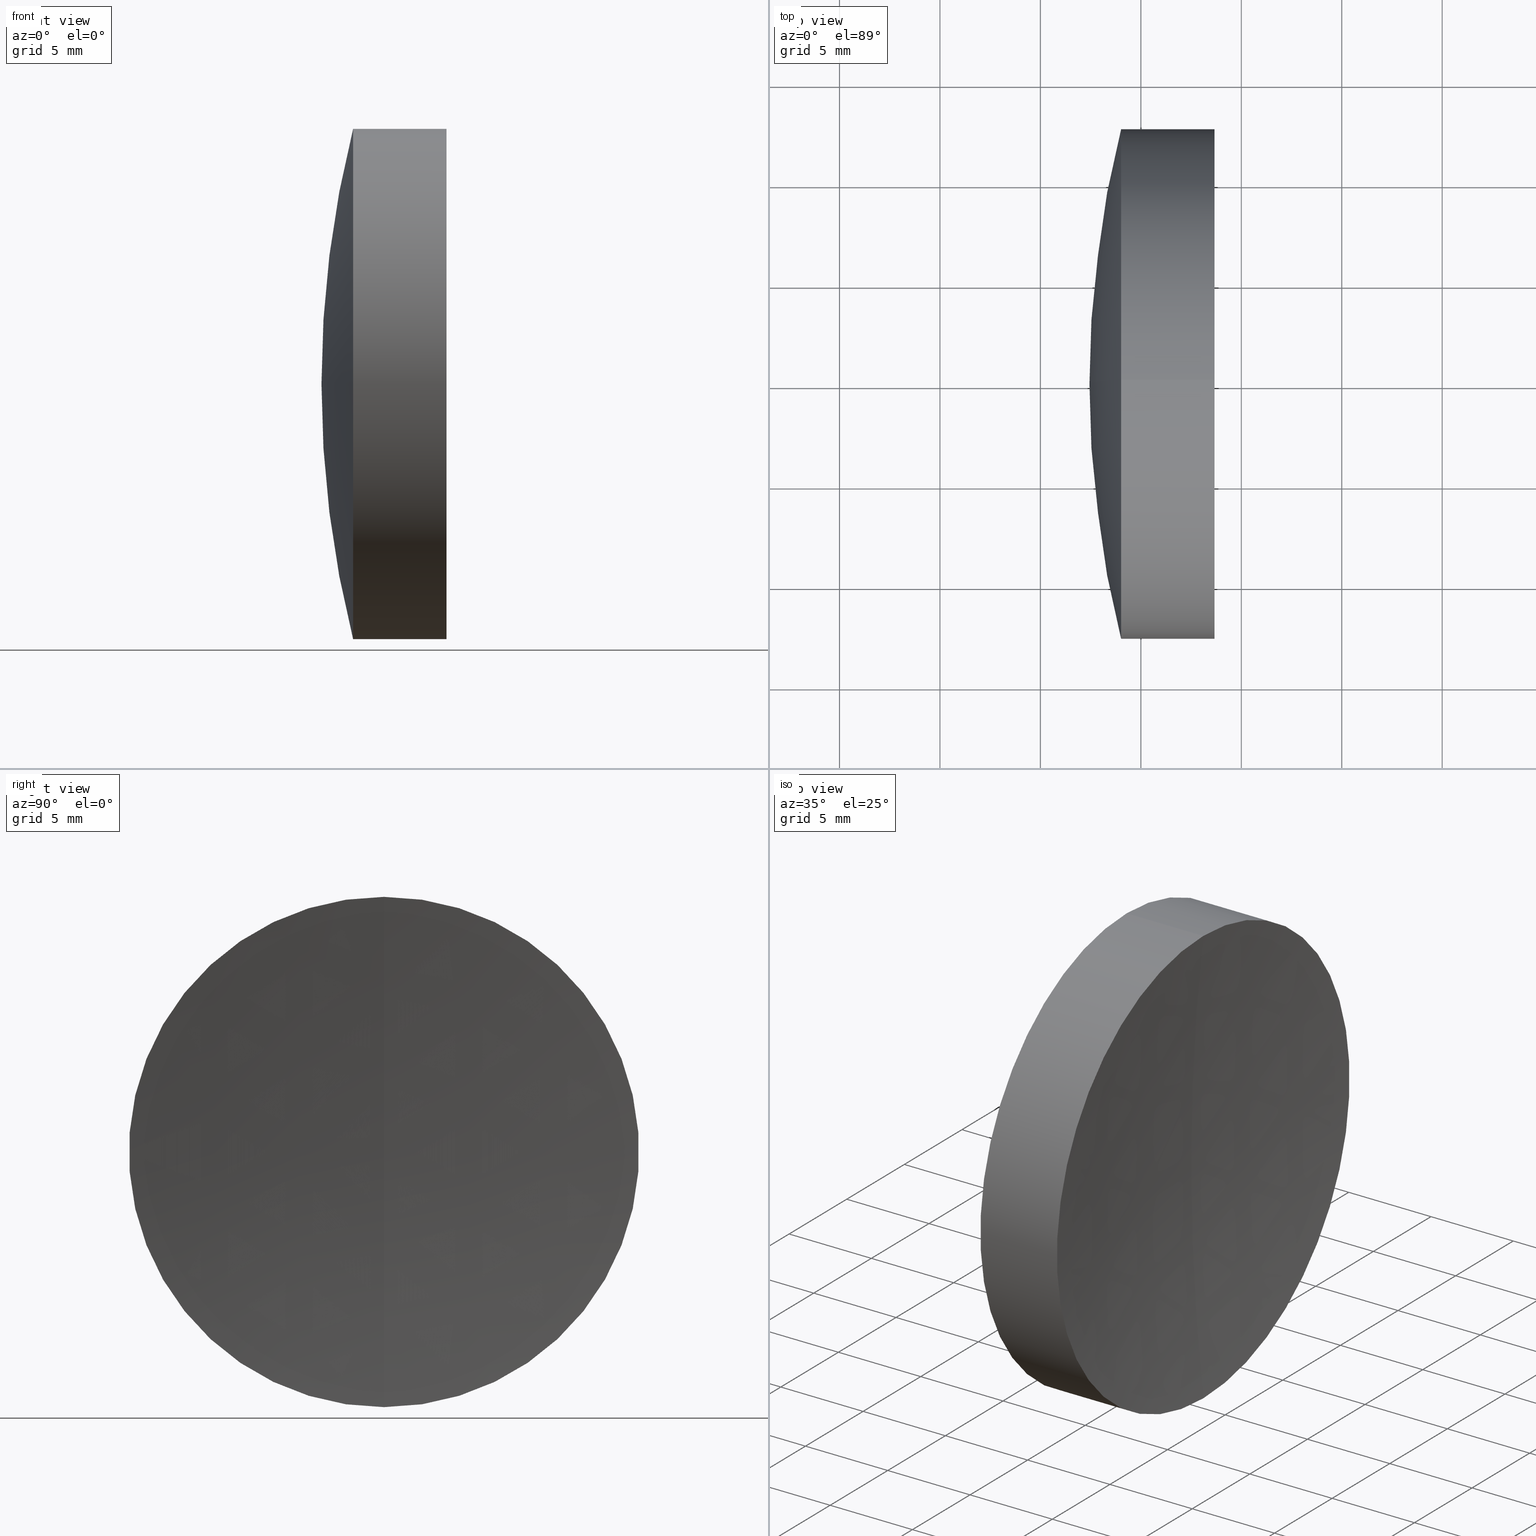
[diagram: canonical four-view strip — front | top / right | iso, engineering-drawing reading convention]
A machine part, canonical four-view strip (front | top / right | iso — engineering-drawing reading convention). The complete STEP part file that produces these views, byte-faithful:
ISO-10303-21;
HEADER;
FILE_DESCRIPTION (( 'STEP AP214' ),
    '1' );
FILE_NAME ('145126.STEP',
    '2019-06-03T07:16:52',
    ( 'user' ),
    ( '΢���й�' ),
    'SwSTEP 2.0',
    'SolidWorks 2016',
    '' );
FILE_SCHEMA (( 'AUTOMOTIVE_DESIGN' ));
ENDSEC;

DATA;
#1 = VERTEX_POINT ( 'NONE', #91 ) ;
#2 = PRODUCT_DEFINITION_FORMATION_WITH_SPECIFIED_SOURCE ( '�κ�', '', #87, .NOT_KNOWN. ) ;
#3 = DIRECTION ( 'NONE',  ( 0.0000000000000000000, 0.0000000000000000000, 1.000000000000000000 ) ) ;
#4 = ORIENTED_EDGE ( 'NONE', *, *, #176, .F. ) ;
#5 = EDGE_CURVE ( 'NONE', #327, #46, #310, .T. ) ;
#6 = CARTESIAN_POINT ( 'NONE',  ( 335.1955762872631200, 0.0000000000000000000, 12.70000000000003100 ) ) ;
#7 =( NAMED_UNIT ( * ) SI_UNIT ( $, .STERADIAN. ) SOLID_ANGLE_UNIT ( ) );
#8 = ORIENTED_EDGE ( 'NONE', *, *, #302, .F. ) ;
#9 = DIRECTION ( 'NONE',  ( 0.0000000000000000000, 1.000000000000000000, 0.0000000000000000000 ) ) ;
#10 = UNCERTAINTY_MEASURE_WITH_UNIT (LENGTH_MEASURE( 1.000000000000000100E-005 ), #336, 'distance_accuracy_value', 'NONE');
#11 = CIRCLE ( 'NONE', #113, 12.70000000000000600 ) ;
#12 = CARTESIAN_POINT ( 'NONE',  ( 334.0169874091439500, 0.0000000000000000000, 0.0000000000000000000 ) ) ;
#13 = DIRECTION ( 'NONE',  ( 0.0000000000000000000, 0.0000000000000000000, 1.000000000000000000 ) ) ;
#14 = CIRCLE ( 'NONE', #75, 65.31000000000005900 ) ;
#15 = AXIS2_PLACEMENT_3D ( 'NONE', #262, #101, #289 ) ;
#16 = CARTESIAN_POINT ( 'NONE',  ( -0.5519199926577972300, 0.0000000000000000000, 12.70000000000001400 ) ) ;
#17 = FILL_AREA_STYLE_COLOUR ( '', #69 ) ;
#18 = ORIENTED_EDGE ( 'NONE', *, *, #141, .F. ) ;
#19 = PRODUCT_RELATED_PRODUCT_CATEGORY ( 'part', '', ( #87 ) ) ;
#20 = SURFACE_STYLE_FILL_AREA ( #82 ) ;
#21 = PRESENTATION_STYLE_ASSIGNMENT (( #269 ) ) ;
#22 =( LENGTH_UNIT ( ) NAMED_UNIT ( * ) SI_UNIT ( .MILLI., .METRE. ) );
#23 = APPLICATION_CONTEXT ( 'automotive_design' ) ;
#24 = AXIS2_PLACEMENT_3D ( 'NONE', #90, #275, #335 ) ;
#25 = EDGE_CURVE ( 'NONE', #301, #86, #274, .T. ) ;
#26 = CIRCLE ( 'NONE', #299, 12.69999999999999200 ) ;
#27 = FACE_OUTER_BOUND ( 'NONE', #133, .T. ) ;
#28 = ORIENTED_EDGE ( 'NONE', *, *, #168, .T. ) ;
#29 = DIRECTION ( 'NONE',  ( 0.0000000000000000000, -1.000000000000000000, -1.224646799147353200E-016 ) ) ;
#30 =( LENGTH_UNIT ( ) NAMED_UNIT ( * ) SI_UNIT ( .MILLI., .METRE. ) );
#31 = CIRCLE ( 'NONE', #218, 12.70000000000003300 ) ;
#32 = CARTESIAN_POINT ( 'NONE',  ( 271.1322786824721900, 0.0000000000000000000, 9.096336103793295000E-015 ) ) ;
#33 = AXIS2_PLACEMENT_3D ( 'NONE', #204, #45, #231 ) ;
#34 = ORIENTED_EDGE ( 'NONE', *, *, #319, .F. ) ;
#35 = DIRECTION ( 'NONE',  ( 0.0000000000000000000, 0.0000000000000000000, 1.000000000000000000 ) ) ;
#36 = DIRECTION ( 'NONE',  ( -1.000000000000000000, -0.0000000000000000000, -0.0000000000000000000 ) ) ;
#37 = CYLINDRICAL_SURFACE ( 'NONE', #100, 12.70000000000001400 ) ;
#38 = CARTESIAN_POINT ( 'NONE',  ( 335.1955762872631200, 0.0000000000000000000, 0.0000000000000000000 ) ) ;
#39 = ORIENTED_EDGE ( 'NONE', *, *, #302, .T. ) ;
#40 = CARTESIAN_POINT ( 'NONE',  ( -0.5519199926577972300, 1.555301434917140200E-015, -12.70000000000001400 ) ) ;
#41 = CARTESIAN_POINT ( 'NONE',  ( 338.6678479171338800, 0.0000000000000000000, 0.0000000000000000000 ) ) ;
#42 = DIRECTION ( 'NONE',  ( 0.0000000000000000000, 0.0000000000000000000, 1.000000000000000000 ) ) ;
#43 = FACE_OUTER_BOUND ( 'NONE', #223, .T. ) ;
#44 = SURFACE_SIDE_STYLE ('',( #20 ) ) ;
#45 = DIRECTION ( 'NONE',  ( 0.0000000000000000000, -1.000000000000000000, -1.224646799147353200E-016 ) ) ;
#46 = VERTEX_POINT ( 'NONE', #192 ) ;
#47 = SPHERICAL_SURFACE ( 'NONE', #189, 51.99999999999998600 ) ;
#48 = ORIENTED_EDGE ( 'NONE', *, *, #206, .T. ) ;
#49 = APPLICATION_CONTEXT ( 'automotive_design' ) ;
#50 = ADVANCED_FACE ( 'NONE', ( #236 ), #47, .T. ) ;
#51 = FACE_OUTER_BOUND ( 'NONE', #216, .T. ) ;
#52 = COLOUR_RGB ( '',1.000000000000000000, 1.000000000000000000, 1.000000000000000000 ) ;
#53 =( LENGTH_UNIT ( ) NAMED_UNIT ( * ) SI_UNIT ( .MILLI., .METRE. ) );
#54 = EDGE_LOOP ( 'NONE', ( #4, #273, #122 ) ) ;
#55 = AXIS2_PLACEMENT_3D ( 'NONE', #174, #73, #132 ) ;
#56 = ORIENTED_EDGE ( 'NONE', *, *, #67, .T. ) ;
#57 =( NAMED_UNIT ( * ) SI_UNIT ( $, .STERADIAN. ) SOLID_ANGLE_UNIT ( ) );
#58 = ORIENTED_EDGE ( 'NONE', *, *, #233, .T. ) ;
#59 = CARTESIAN_POINT ( 'NONE',  ( 334.0169874091439500, -1.555301434917139600E-015, 12.70000000000001900 ) ) ;
#60 = CARTESIAN_POINT ( 'NONE',  ( 338.6678479171338800, 0.0000000000000000000, 0.0000000000000000000 ) ) ;
#61 = PRESENTATION_LAYER_ASSIGNMENT (  '', '', ( #85 ) ) ;
#62 = CARTESIAN_POINT ( 'NONE',  ( 384.4422786824721900, 0.0000000000000000000, 8.273825033181206100E-015 ) ) ;
#63 = ORIENTED_EDGE ( 'NONE', *, *, #222, .F. ) ;
#64 = DIRECTION ( 'NONE',  ( 0.0000000000000000000, 0.0000000000000000000, -1.000000000000000000 ) ) ;
#65 = SURFACE_STYLE_USAGE ( .BOTH. , #44 ) ;
#66 = DIRECTION ( 'NONE',  ( -1.000000000000000000, -0.0000000000000000000, -0.0000000000000000000 ) ) ;
#67 = EDGE_CURVE ( 'NONE', #114, #1, #187, .T. ) ;
#68 = DIRECTION ( 'NONE',  ( 0.0000000000000000000, 0.0000000000000000000, 1.000000000000000000 ) ) ;
#69 = COLOUR_RGB ( '',1.000000000000000000, 1.000000000000000000, 1.000000000000000000 ) ;
#70 = ORIENTED_EDGE ( 'NONE', *, *, #186, .T. ) ;
#71 = DIRECTION ( 'NONE',  ( 0.0000000000000000000, 0.0000000000000000000, 1.000000000000000000 ) ) ;
#72 = DIRECTION ( 'NONE',  ( 0.0000000000000000000, 0.0000000000000000000, 1.000000000000000000 ) ) ;
#73 = DIRECTION ( 'NONE',  ( -0.0000000000000000000, -1.000000000000000000, -0.0000000000000000000 ) ) ;
#74 = EDGE_LOOP ( 'NONE', ( #63, #140, #18 ) ) ;
#75 = AXIS2_PLACEMENT_3D ( 'NONE', #103, #290, #134 ) ;
#76 = DIRECTION ( 'NONE',  ( -0.0000000000000000000, -1.000000000000000000, -0.0000000000000000000 ) ) ;
#77 = CLOSED_SHELL ( 'NONE', ( #211, #271, #50, #296, #181, #138 ) ) ;
#78 =( NAMED_UNIT ( * ) SI_UNIT ( $, .STERADIAN. ) SOLID_ANGLE_UNIT ( ) );
#79 = LINE ( 'NONE', #248, #285 ) ;
#80 = VECTOR ( 'NONE', #205, 1000.000000000000000 ) ;
#81 = CYLINDRICAL_SURFACE ( 'NONE', #214, 12.70000000000001400 ) ;
#82 = FILL_AREA_STYLE ('',( #17 ) ) ;
#83 = ADVANCED_FACE ( 'NONE', ( #105 ), #37, .T. ) ;
#84 = DIRECTION ( 'NONE',  ( -1.000000000000000000, -0.0000000000000000000, -0.0000000000000000000 ) ) ;
#85 = STYLED_ITEM ( 'NONE', ( #89 ), #117 ) ;
#86 = VERTEX_POINT ( 'NONE', #6 ) ;
#87 = PRODUCT ( '145126', '145126', '', ( #292 ) ) ;
#88 = EDGE_CURVE ( 'NONE', #107, #180, #79, .T. ) ;
#89 = PRESENTATION_STYLE_ASSIGNMENT (( #147 ) ) ;
#90 = CARTESIAN_POINT ( 'NONE',  ( 449.4522786824721800, 0.0000000000000000000, 0.0000000000000000000 ) ) ;
#91 = CARTESIAN_POINT ( 'NONE',  ( 337.9422786824720800, 0.0000000000000000000, -6.828018228646076000E-015 ) ) ;
#92 = DIRECTION ( 'NONE',  ( 0.0000000000000000000, 0.0000000000000000000, -1.000000000000000000 ) ) ;
#93 = SPHERICAL_SURFACE ( 'NONE', #55, 111.5100000000001300 ) ;
#94 = AXIS2_PLACEMENT_3D ( 'NONE', #240, #84, #112 ) ;
#95 = CARTESIAN_POINT ( 'NONE',  ( 335.1955762872631200, 1.555301434917139200E-015, -12.70000000000000600 ) ) ;
#96 = EDGE_LOOP ( 'NONE', ( #104, #244, #346, #161 ) ) ;
#97 = CARTESIAN_POINT ( 'NONE',  ( 335.1955762872631200, 0.0000000000000000000, 0.0000000000000000000 ) ) ;
#98 = CARTESIAN_POINT ( 'NONE',  ( 271.1322786824721900, 0.0000000000000000000, 9.096336103793295000E-015 ) ) ;
#99 = DIRECTION ( 'NONE',  ( -1.000000000000000000, -0.0000000000000000000, -0.0000000000000000000 ) ) ;
#100 = AXIS2_PLACEMENT_3D ( 'NONE', #252, #145, #3 ) ;
#101 = DIRECTION ( 'NONE',  ( 0.0000000000000000000, 1.000000000000000000, -0.0000000000000000000 ) ) ;
#102 = LINE ( 'NONE', #171, #165 ) ;
#103 = CARTESIAN_POINT ( 'NONE',  ( 271.1322786824721900, 0.0000000000000000000, 9.096336103793295000E-015 ) ) ;
#104 = ORIENTED_EDGE ( 'NONE', *, *, #186, .F. ) ;
#105 = FACE_OUTER_BOUND ( 'NONE', #96, .T. ) ;
#106 = LINE ( 'NONE', #16, #80 ) ;
#107 = VERTEX_POINT ( 'NONE', #95 ) ;
#108 = DIRECTION ( 'NONE',  ( -1.000000000000000000, -0.0000000000000000000, -0.0000000000000000000 ) ) ;
#109 = APPLICATION_PROTOCOL_DEFINITION ( 'draft international standard', 'automotive_design', 1998, #49 ) ;
#110 = UNCERTAINTY_MEASURE_WITH_UNIT (LENGTH_MEASURE( 1.000000000000000100E-005 ), #22, 'distance_accuracy_value', 'NONE');
#111 = FACE_OUTER_BOUND ( 'NONE', #54, .T. ) ;
#112 = DIRECTION ( 'NONE',  ( 0.0000000000000000000, 0.0000000000000000000, 1.000000000000000000 ) ) ;
#113 = AXIS2_PLACEMENT_3D ( 'NONE', #266, #108, #294 ) ;
#114 = VERTEX_POINT ( 'NONE', #166 ) ;
#115 = SURFACE_STYLE_FILL_AREA ( #123 ) ;
#116 = SURFACE_STYLE_FILL_AREA ( #247 ) ;
#117 = MANIFOLD_SOLID_BREP ( '��ת1', #77 ) ;
#118 = ORIENTED_EDGE ( 'NONE', *, *, #272, .F. ) ;
#119 = CIRCLE ( 'NONE', #202, 12.70000000000003300 ) ;
#120 = MECHANICAL_DESIGN_GEOMETRIC_PRESENTATION_REPRESENTATION (  '', ( #85 ), #139 ) ;
#121 = CARTESIAN_POINT ( 'NONE',  ( 384.4422786824721900, 0.0000000000000000000, 8.273825033181206100E-015 ) ) ;
#122 = ORIENTED_EDGE ( 'NONE', *, *, #280, .F. ) ;
#123 = FILL_AREA_STYLE ('',( #279 ) ) ;
#124 = ADVANCED_FACE ( 'NONE', ( #43 ), #156, .F. ) ;
#125 = CARTESIAN_POINT ( 'NONE',  ( 271.1322786824721900, 0.0000000000000000000, 9.096336103793295000E-015 ) ) ;
#126 = DIRECTION ( 'NONE',  ( 0.0000000000000000000, 0.0000000000000000000, 1.000000000000000000 ) ) ;
#127 = DIRECTION ( 'NONE',  ( 0.0000000000000000000, -1.000000000000000000, 0.0000000000000000000 ) ) ;
#128 = DIRECTION ( 'NONE',  ( 0.0000000000000000000, 0.0000000000000000000, -1.000000000000000000 ) ) ;
#129 = CARTESIAN_POINT ( 'NONE',  ( 335.1955762872631200, 0.0000000000000000000, 12.70000000000000600 ) ) ;
#130 =( NAMED_UNIT ( * ) PLANE_ANGLE_UNIT ( ) SI_UNIT ( $, .RADIAN. ) );
#131 = CARTESIAN_POINT ( 'NONE',  ( 271.1322786824721900, 0.0000000000000000000, 9.096336103793295000E-015 ) ) ;
#132 = DIRECTION ( 'NONE',  ( 0.0000000000000000000, 0.0000000000000000000, -1.000000000000000000 ) ) ;
#133 = EDGE_LOOP ( 'NONE', ( #142, #70, #339, #118 ) ) ;
#134 = DIRECTION ( 'NONE',  ( 0.0000000000000000000, -1.224646799147353200E-016, 1.000000000000000000 ) ) ;
#135 = AXIS2_PLACEMENT_3D ( 'NONE', #264, #341, #13 ) ;
#136 = ORIENTED_EDGE ( 'NONE', *, *, #230, .T. ) ;
#137 = ORIENTED_EDGE ( 'NONE', *, *, #233, .F. ) ;
#138 = ADVANCED_FACE ( 'NONE', ( #227 ), #182, .T. ) ;
#139 =( GEOMETRIC_REPRESENTATION_CONTEXT ( 3 ) GLOBAL_UNCERTAINTY_ASSIGNED_CONTEXT ( ( #10 ) ) GLOBAL_UNIT_ASSIGNED_CONTEXT ( ( #336, #167, #7 ) ) REPRESENTATION_CONTEXT ( 'NONE', 'WORKASPACE' ) );
#140 = ORIENTED_EDGE ( 'NONE', *, *, #176, .T. ) ;
#141 = EDGE_CURVE ( 'NONE', #107, #215, #261, .T. ) ;
#142 = ORIENTED_EDGE ( 'NONE', *, *, #213, .T. ) ;
#143 = CARTESIAN_POINT ( 'NONE',  ( 449.4522786824721800, 0.0000000000000000000, 0.0000000000000000000 ) ) ;
#144 = ORIENTED_EDGE ( 'NONE', *, *, #213, .F. ) ;
#145 = DIRECTION ( 'NONE',  ( -1.000000000000000000, -0.0000000000000000000, -0.0000000000000000000 ) ) ;
#146 = AXIS2_PLACEMENT_3D ( 'NONE', #177, #76, #323 ) ;
#147 = SURFACE_STYLE_USAGE ( .BOTH. , #307 ) ;
#148 = CARTESIAN_POINT ( 'NONE',  ( 334.0169874091439500, 0.0000000000000000000, -12.70000000000001000 ) ) ;
#149 = DIRECTION ( 'NONE',  ( 0.0000000000000000000, -1.224646799147353200E-016, 1.000000000000000000 ) ) ;
#150 = ORIENTED_EDGE ( 'NONE', *, *, #154, .T. ) ;
#151 = APPLICATION_PROTOCOL_DEFINITION ( 'draft international standard', 'automotive_design', 1998, #23 ) ;
#152 = AXIS2_PLACEMENT_3D ( 'NONE', #197, #36, #224 ) ;
#153 = CIRCLE ( 'NONE', #333, 65.31000000000005900 ) ;
#154 = EDGE_CURVE ( 'NONE', #86, #337, #119, .T. ) ;
#155 =( GEOMETRIC_REPRESENTATION_CONTEXT ( 3 ) GLOBAL_UNCERTAINTY_ASSIGNED_CONTEXT ( ( #260 ) ) GLOBAL_UNIT_ASSIGNED_CONTEXT ( ( #30, #172, #57 ) ) REPRESENTATION_CONTEXT ( 'NONE', 'WORKASPACE' ) );
#156 = SPHERICAL_SURFACE ( 'NONE', #163, 65.31000000000005900 ) ;
#157 = SPHERICAL_SURFACE ( 'NONE', #179, 111.5100000000001300 ) ;
#158 = ADVANCED_FACE ( 'NONE', ( #51 ), #315, .F. ) ;
#159 = CIRCLE ( 'NONE', #33, 111.5100000000001300 ) ;
#160 = AXIS2_PLACEMENT_3D ( 'NONE', #60, #297, #191 ) ;
#161 = ORIENTED_EDGE ( 'NONE', *, *, #168, .F. ) ;
#162 = EDGE_LOOP ( 'NONE', ( #144, #178, #322 ) ) ;
#163 = AXIS2_PLACEMENT_3D ( 'NONE', #221, #254, #68 ) ;
#164 = DIRECTION ( 'NONE',  ( 0.0000000000000000000, 1.224646799147353200E-016, -1.000000000000000000 ) ) ;
#165 = VECTOR ( 'NONE', #99, 1000.000000000000000 ) ;
#166 = CARTESIAN_POINT ( 'NONE',  ( 338.6678479171338800, 1.555301434917139000E-015, -12.69999999999999200 ) ) ;
#167 =( NAMED_UNIT ( * ) PLANE_ANGLE_UNIT ( ) SI_UNIT ( $, .RADIAN. ) );
#168 = EDGE_CURVE ( 'NONE', #337, #86, #31, .T. ) ;
#169 =( GEOMETRIC_REPRESENTATION_CONTEXT ( 3 ) GLOBAL_UNCERTAINTY_ASSIGNED_CONTEXT ( ( #190 ) ) GLOBAL_UNIT_ASSIGNED_CONTEXT ( ( #53, #200, #78 ) ) REPRESENTATION_CONTEXT ( 'NONE', 'WORKASPACE' ) );
#170 = SPHERICAL_SURFACE ( 'NONE', #146, 51.99999999999998600 ) ;
#171 = CARTESIAN_POINT ( 'NONE',  ( 124.5233095260452400, 0.0000000000000000000, 12.70000000000000600 ) ) ;
#172 =( NAMED_UNIT ( * ) PLANE_ANGLE_UNIT ( ) SI_UNIT ( $, .RADIAN. ) );
#173 = ORIENTED_EDGE ( 'NONE', *, *, #25, .F. ) ;
#174 = CARTESIAN_POINT ( 'NONE',  ( 449.4522786824721800, 0.0000000000000000000, 0.0000000000000000000 ) ) ;
#175 = LINE ( 'NONE', #40, #325 ) ;
#176 = EDGE_CURVE ( 'NONE', #281, #215, #332, .T. ) ;
#177 = CARTESIAN_POINT ( 'NONE',  ( 384.4422786824721900, 0.0000000000000000000, 8.273825033181206100E-015 ) ) ;
#178 = ORIENTED_EDGE ( 'NONE', *, *, #249, .T. ) ;
#179 = AXIS2_PLACEMENT_3D ( 'NONE', #143, #209, #128 ) ;
#180 = VERTEX_POINT ( 'NONE', #148 ) ;
#181 = ADVANCED_FACE ( 'NONE', ( #251 ), #306, .T. ) ;
#182 = SPHERICAL_SURFACE ( 'NONE', #184, 65.31000000000005900 ) ;
#183 = SHAPE_DEFINITION_REPRESENTATION ( #304, #342 ) ;
#184 = AXIS2_PLACEMENT_3D ( 'NONE', #125, #194, #35 ) ;
#185 = EDGE_LOOP ( 'NONE', ( #291, #253, #48, #331 ) ) ;
#186 = EDGE_CURVE ( 'NONE', #114, #337, #175, .T. ) ;
#187 = CIRCLE ( 'NONE', #24, 111.5100000000001300 ) ;
#188 = VERTEX_POINT ( 'NONE', #199 ) ;
#189 = AXIS2_PLACEMENT_3D ( 'NONE', #121, #250, #92 ) ;
#190 = UNCERTAINTY_MEASURE_WITH_UNIT (LENGTH_MEASURE( 1.000000000000000100E-005 ), #53, 'distance_accuracy_value', 'NONE');
#191 = DIRECTION ( 'NONE',  ( 0.0000000000000000000, 0.0000000000000000000, 1.000000000000000000 ) ) ;
#192 = CARTESIAN_POINT ( 'NONE',  ( 332.4422786824722500, 0.0000000000000000000, 5.089743355398088300E-015 ) ) ;
#193 = ORIENTED_EDGE ( 'NONE', *, *, #267, .F. ) ;
#194 = DIRECTION ( 'NONE',  ( 0.0000000000000000000, 1.000000000000000000, 0.0000000000000000000 ) ) ;
#195 = STYLED_ITEM ( 'NONE', ( #21 ), #338 ) ;
#196 = COLOUR_RGB ( '',1.000000000000000000, 1.000000000000000000, 1.000000000000000000 ) ;
#197 = CARTESIAN_POINT ( 'NONE',  ( 335.1955762872631200, 0.0000000000000000000, 0.0000000000000000000 ) ) ;
#198 = CARTESIAN_POINT ( 'NONE',  ( 124.5233095260452400, 0.0000000000000000000, 0.0000000000000000000 ) ) ;
#199 = CARTESIAN_POINT ( 'NONE',  ( 338.6678479171338800, 0.0000000000000000000, 12.69999999999999200 ) ) ;
#200 =( NAMED_UNIT ( * ) PLANE_ANGLE_UNIT ( ) SI_UNIT ( $, .RADIAN. ) );
#201 = DIRECTION ( 'NONE',  ( -1.000000000000000000, -0.0000000000000000000, -0.0000000000000000000 ) ) ;
#202 = AXIS2_PLACEMENT_3D ( 'NONE', #97, #282, #126 ) ;
#203 = EDGE_LOOP ( 'NONE', ( #265, #39, #58 ) ) ;
#204 = CARTESIAN_POINT ( 'NONE',  ( 449.4522786824721800, 0.0000000000000000000, 0.0000000000000000000 ) ) ;
#205 = DIRECTION ( 'NONE',  ( -1.000000000000000000, -0.0000000000000000000, -0.0000000000000000000 ) ) ;
#206 = EDGE_CURVE ( 'NONE', #215, #327, #102, .T. ) ;
#207 = STYLED_ITEM ( 'NONE', ( #303 ), #342 ) ;
#208 = CARTESIAN_POINT ( 'NONE',  ( 335.1955762872631200, 1.555301434917142400E-015, -12.70000000000002200 ) ) ;
#209 = DIRECTION ( 'NONE',  ( -0.0000000000000000000, -1.000000000000000000, -0.0000000000000000000 ) ) ;
#210 = DIRECTION ( 'NONE',  ( -1.000000000000000000, -0.0000000000000000000, -0.0000000000000000000 ) ) ;
#211 = ADVANCED_FACE ( 'NONE', ( #111 ), #242, .T. ) ;
#212 = ORIENTED_EDGE ( 'NONE', *, *, #206, .F. ) ;
#213 = EDGE_CURVE ( 'NONE', #188, #114, #26, .T. ) ;
#214 = AXIS2_PLACEMENT_3D ( 'NONE', #234, #210, #293 ) ;
#215 = VERTEX_POINT ( 'NONE', #129 ) ;
#216 = EDGE_LOOP ( 'NONE', ( #173, #217, #28 ) ) ;
#217 = ORIENTED_EDGE ( 'NONE', *, *, #267, .T. ) ;
#218 = AXIS2_PLACEMENT_3D ( 'NONE', #38, #226, #71 ) ;
#219 = DIRECTION ( 'NONE',  ( 0.0000000000000000000, -1.000000000000000000, 0.0000000000000000000 ) ) ;
#220 = CIRCLE ( 'NONE', #347, 12.70000000000000600 ) ;
#221 = CARTESIAN_POINT ( 'NONE',  ( 271.1322786824721900, 0.0000000000000000000, 9.096336103793295000E-015 ) ) ;
#222 = EDGE_CURVE ( 'NONE', #281, #107, #153, .T. ) ;
#223 = EDGE_LOOP ( 'NONE', ( #193, #343, #150 ) ) ;
#224 = DIRECTION ( 'NONE',  ( 0.0000000000000000000, 0.0000000000000000000, 1.000000000000000000 ) ) ;
#225 = PRESENTATION_LAYER_ASSIGNMENT (  '', '', ( #207 ) ) ;
#226 = DIRECTION ( 'NONE',  ( -1.000000000000000000, -0.0000000000000000000, -0.0000000000000000000 ) ) ;
#227 = FACE_OUTER_BOUND ( 'NONE', #74, .T. ) ;
#228 = DIRECTION ( 'NONE',  ( -1.000000000000000000, -0.0000000000000000000, -0.0000000000000000000 ) ) ;
#229 = DIRECTION ( 'NONE',  ( -1.000000000000000000, -0.0000000000000000000, -0.0000000000000000000 ) ) ;
#230 = EDGE_CURVE ( 'NONE', #180, #327, #220, .T. ) ;
#231 = DIRECTION ( 'NONE',  ( 0.0000000000000000000, 1.224646799147353200E-016, -1.000000000000000000 ) ) ;
#232 = FACE_OUTER_BOUND ( 'NONE', #288, .T. ) ;
#233 = EDGE_CURVE ( 'NONE', #180, #46, #300, .T. ) ;
#234 = CARTESIAN_POINT ( 'NONE',  ( -0.5519199926577972300, 0.0000000000000000000, 0.0000000000000000000 ) ) ;
#235 = PRESENTATION_LAYER_ASSIGNMENT (  '', '', ( #195 ) ) ;
#236 = FACE_OUTER_BOUND ( 'NONE', #308, .T. ) ;
#237 = CIRCLE ( 'NONE', #160, 12.69999999999999200 ) ;
#238 =( NAMED_UNIT ( * ) SI_UNIT ( $, .STERADIAN. ) SOLID_ANGLE_UNIT ( ) );
#239 = CARTESIAN_POINT ( 'NONE',  ( 0.0000000000000000000, 0.0000000000000000000, 0.0000000000000000000 ) ) ;
#240 = CARTESIAN_POINT ( 'NONE',  ( 334.0169874091439500, 0.0000000000000000000, 0.0000000000000000000 ) ) ;
#241 = ADVANCED_FACE ( 'NONE', ( #232 ), #93, .F. ) ;
#242 = SPHERICAL_SURFACE ( 'NONE', #278, 65.31000000000005900 ) ;
#243 = AXIS2_PLACEMENT_3D ( 'NONE', #256, #9, #309 ) ;
#244 = ORIENTED_EDGE ( 'NONE', *, *, #319, .T. ) ;
#245 = FILL_AREA_STYLE_COLOUR ( '', #52 ) ;
#246 = MECHANICAL_DESIGN_GEOMETRIC_PRESENTATION_REPRESENTATION (  '', ( #207 ), #270 ) ;
#247 = FILL_AREA_STYLE ('',( #245 ) ) ;
#248 = CARTESIAN_POINT ( 'NONE',  ( 124.5233095260452400, 1.555301434917139200E-015, -12.70000000000000600 ) ) ;
#249 = EDGE_CURVE ( 'NONE', #188, #1, #159, .T. ) ;
#250 = DIRECTION ( 'NONE',  ( -0.0000000000000000000, -1.000000000000000000, -0.0000000000000000000 ) ) ;
#251 = FACE_OUTER_BOUND ( 'NONE', #185, .T. ) ;
#252 = CARTESIAN_POINT ( 'NONE',  ( -0.5519199926577972300, 0.0000000000000000000, 0.0000000000000000000 ) ) ;
#253 = ORIENTED_EDGE ( 'NONE', *, *, #141, .T. ) ;
#254 = DIRECTION ( 'NONE',  ( 0.0000000000000000000, 1.000000000000000000, 0.0000000000000000000 ) ) ;
#255 = MECHANICAL_DESIGN_GEOMETRIC_PRESENTATION_REPRESENTATION (  '', ( #195 ), #155 ) ;
#256 = CARTESIAN_POINT ( 'NONE',  ( 271.1322786824721900, 0.0000000000000000000, 9.096336103793295000E-015 ) ) ;
#257 = DIRECTION ( 'NONE',  ( -1.000000000000000000, -0.0000000000000000000, -0.0000000000000000000 ) ) ;
#258 = DIRECTION ( 'NONE',  ( 0.0000000000000000000, 0.0000000000000000000, 1.000000000000000000 ) ) ;
#259 = ORIENTED_EDGE ( 'NONE', *, *, #280, .T. ) ;
#260 = UNCERTAINTY_MEASURE_WITH_UNIT (LENGTH_MEASURE( 1.000000000000000100E-005 ), #30, 'distance_accuracy_value', 'NONE');
#261 = CIRCLE ( 'NONE', #152, 12.70000000000000600 ) ;
#262 = CARTESIAN_POINT ( 'NONE',  ( 384.4422786824721900, 0.0000000000000000000, 8.273825033181206100E-015 ) ) ;
#263 = AXIS2_PLACEMENT_3D ( 'NONE', #283, #127, #312 ) ;
#264 = CARTESIAN_POINT ( 'NONE',  ( 124.5233095260452400, 0.0000000000000000000, 0.0000000000000000000 ) ) ;
#265 = ORIENTED_EDGE ( 'NONE', *, *, #5, .F. ) ;
#266 = CARTESIAN_POINT ( 'NONE',  ( 335.1955762872631200, 0.0000000000000000000, 0.0000000000000000000 ) ) ;
#267 = EDGE_CURVE ( 'NONE', #301, #337, #14, .T. ) ;
#268 = DIRECTION ( 'NONE',  ( 1.000000000000000000, 0.0000000000000000000, 0.0000000000000000000 ) ) ;
#269 = SURFACE_STYLE_USAGE ( .BOTH. , #305 ) ;
#270 =( GEOMETRIC_REPRESENTATION_CONTEXT ( 3 ) GLOBAL_UNCERTAINTY_ASSIGNED_CONTEXT ( ( #110 ) ) GLOBAL_UNIT_ASSIGNED_CONTEXT ( ( #22, #130, #238 ) ) REPRESENTATION_CONTEXT ( 'NONE', 'WORKASPACE' ) );
#271 = ADVANCED_FACE ( 'NONE', ( #329 ), #311, .T. ) ;
#272 = EDGE_CURVE ( 'NONE', #188, #86, #106, .T. ) ;
#273 = ORIENTED_EDGE ( 'NONE', *, *, #222, .T. ) ;
#274 = CIRCLE ( 'NONE', #324, 65.31000000000005900 ) ;
#275 = DIRECTION ( 'NONE',  ( 0.0000000000000000000, 1.000000000000000000, -0.0000000000000000000 ) ) ;
#276 = FACE_OUTER_BOUND ( 'NONE', #162, .T. ) ;
#277 = CLOSED_SHELL ( 'NONE', ( #328, #326, #158, #124, #83, #241 ) ) ;
#278 = AXIS2_PLACEMENT_3D ( 'NONE', #98, #284, #313 ) ;
#279 = FILL_AREA_STYLE_COLOUR ( '', #196 ) ;
#280 = EDGE_CURVE ( 'NONE', #215, #107, #11, .T. ) ;
#281 = VERTEX_POINT ( 'NONE', #317 ) ;
#282 = DIRECTION ( 'NONE',  ( -1.000000000000000000, -0.0000000000000000000, -0.0000000000000000000 ) ) ;
#283 = CARTESIAN_POINT ( 'NONE',  ( 271.1322786824721900, 0.0000000000000000000, 9.096336103793295000E-015 ) ) ;
#284 = DIRECTION ( 'NONE',  ( 0.0000000000000000000, 1.000000000000000000, 0.0000000000000000000 ) ) ;
#285 = VECTOR ( 'NONE', #66, 1000.000000000000000 ) ;
#286 = CIRCLE ( 'NONE', #94, 12.70000000000000600 ) ;
#287 = AXIS2_PLACEMENT_3D ( 'NONE', #62, #29, #164 ) ;
#288 = EDGE_LOOP ( 'NONE', ( #298, #34, #56 ) ) ;
#289 = DIRECTION ( 'NONE',  ( 0.0000000000000000000, 0.0000000000000000000, 1.000000000000000000 ) ) ;
#290 = DIRECTION ( 'NONE',  ( -0.0000000000000000000, 1.000000000000000000, 1.224646799147353200E-016 ) ) ;
#291 = ORIENTED_EDGE ( 'NONE', *, *, #88, .F. ) ;
#292 = PRODUCT_CONTEXT ( 'NONE', #23, 'mechanical' ) ;
#293 = DIRECTION ( 'NONE',  ( 0.0000000000000000000, 0.0000000000000000000, 1.000000000000000000 ) ) ;
#294 = DIRECTION ( 'NONE',  ( 0.0000000000000000000, 0.0000000000000000000, 1.000000000000000000 ) ) ;
#295 = DIRECTION ( 'NONE',  ( 0.0000000000000000000, 0.0000000000000000000, 1.000000000000000000 ) ) ;
#296 = ADVANCED_FACE ( 'NONE', ( #330 ), #170, .T. ) ;
#297 = DIRECTION ( 'NONE',  ( -1.000000000000000000, -0.0000000000000000000, -0.0000000000000000000 ) ) ;
#298 = ORIENTED_EDGE ( 'NONE', *, *, #249, .F. ) ;
#299 = AXIS2_PLACEMENT_3D ( 'NONE', #41, #229, #72 ) ;
#300 = CIRCLE ( 'NONE', #15, 51.99999999999998600 ) ;
#301 = VERTEX_POINT ( 'NONE', #345 ) ;
#302 = EDGE_CURVE ( 'NONE', #327, #180, #286, .T. ) ;
#303 = PRESENTATION_STYLE_ASSIGNMENT (( #65 ) ) ;
#304 = PRODUCT_DEFINITION_SHAPE ( 'NONE', 'NONE',  #340 ) ;
#305 = SURFACE_SIDE_STYLE ('',( #116 ) ) ;
#306 = CYLINDRICAL_SURFACE ( 'NONE', #316, 12.70000000000000600 ) ;
#307 = SURFACE_SIDE_STYLE ('',( #115 ) ) ;
#308 = EDGE_LOOP ( 'NONE', ( #136, #320, #137 ) ) ;
#309 = DIRECTION ( 'NONE',  ( 0.0000000000000000000, 0.0000000000000000000, 1.000000000000000000 ) ) ;
#310 = CIRCLE ( 'NONE', #287, 51.99999999999998600 ) ;
#311 = CYLINDRICAL_SURFACE ( 'NONE', #135, 12.70000000000000600 ) ;
#312 = DIRECTION ( 'NONE',  ( 0.0000000000000000000, 0.0000000000000000000, -1.000000000000000000 ) ) ;
#313 = DIRECTION ( 'NONE',  ( 0.0000000000000000000, 0.0000000000000000000, 1.000000000000000000 ) ) ;
#314 = DIRECTION ( 'NONE',  ( -0.0000000000000000000, 1.000000000000000000, 1.224646799147353200E-016 ) ) ;
#315 = SPHERICAL_SURFACE ( 'NONE', #243, 65.31000000000005900 ) ;
#316 = AXIS2_PLACEMENT_3D ( 'NONE', #198, #257, #258 ) ;
#317 = CARTESIAN_POINT ( 'NONE',  ( 336.4422786824722500, 0.0000000000000000000, 1.309542022640897900E-014 ) ) ;
#318 = EDGE_LOOP ( 'NONE', ( #259, #334, #8, #212 ) ) ;
#319 = EDGE_CURVE ( 'NONE', #114, #188, #237, .T. ) ;
#320 = ORIENTED_EDGE ( 'NONE', *, *, #5, .T. ) ;
#321 = AXIS2_PLACEMENT_3D ( 'NONE', #239, #295, #268 ) ;
#322 = ORIENTED_EDGE ( 'NONE', *, *, #67, .F. ) ;
#323 = DIRECTION ( 'NONE',  ( 0.0000000000000000000, 0.0000000000000000000, -1.000000000000000000 ) ) ;
#324 = AXIS2_PLACEMENT_3D ( 'NONE', #32, #219, #64 ) ;
#325 = VECTOR ( 'NONE', #228, 1000.000000000000000 ) ;
#326 = ADVANCED_FACE ( 'NONE', ( #27 ), #81, .T. ) ;
#327 = VERTEX_POINT ( 'NONE', #59 ) ;
#328 = ADVANCED_FACE ( 'NONE', ( #276 ), #157, .F. ) ;
#329 = FACE_OUTER_BOUND ( 'NONE', #318, .T. ) ;
#330 = FACE_OUTER_BOUND ( 'NONE', #203, .T. ) ;
#331 = ORIENTED_EDGE ( 'NONE', *, *, #230, .F. ) ;
#332 = CIRCLE ( 'NONE', #263, 65.31000000000005900 ) ;
#333 = AXIS2_PLACEMENT_3D ( 'NONE', #131, #314, #149 ) ;
#334 = ORIENTED_EDGE ( 'NONE', *, *, #88, .T. ) ;
#335 = DIRECTION ( 'NONE',  ( 0.0000000000000000000, 0.0000000000000000000, 1.000000000000000000 ) ) ;
#336 =( LENGTH_UNIT ( ) NAMED_UNIT ( * ) SI_UNIT ( .MILLI., .METRE. ) );
#337 = VERTEX_POINT ( 'NONE', #208 ) ;
#338 = MANIFOLD_SOLID_BREP ( '��ת3', #277 ) ;
#339 = ORIENTED_EDGE ( 'NONE', *, *, #154, .F. ) ;
#340 = PRODUCT_DEFINITION ( 'δ֪', '', #2, #344 ) ;
#341 = DIRECTION ( 'NONE',  ( -1.000000000000000000, -0.0000000000000000000, -0.0000000000000000000 ) ) ;
#342 = ADVANCED_BREP_SHAPE_REPRESENTATION ( '145126', ( #117, #338, #321 ), #169 ) ;
#343 = ORIENTED_EDGE ( 'NONE', *, *, #25, .T. ) ;
#344 = PRODUCT_DEFINITION_CONTEXT ( 'detailed design', #49, 'design' ) ;
#345 = CARTESIAN_POINT ( 'NONE',  ( 336.4422786824722500, 0.0000000000000000000, 1.309542022640897900E-014 ) ) ;
#346 = ORIENTED_EDGE ( 'NONE', *, *, #272, .T. ) ;
#347 = AXIS2_PLACEMENT_3D ( 'NONE', #12, #201, #42 ) ;
ENDSEC;
END-ISO-10303-21;
